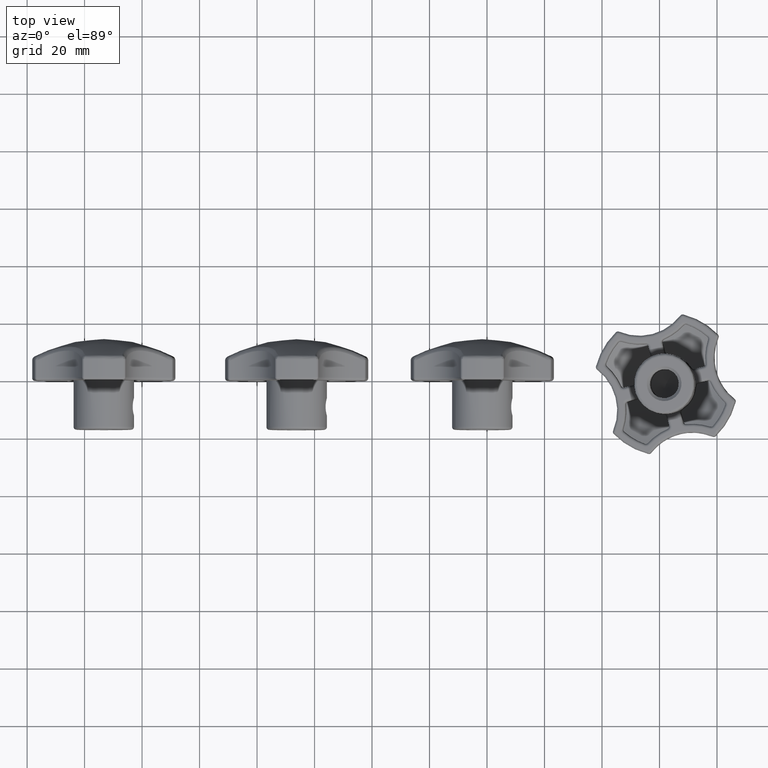
[diagram: clean part render]
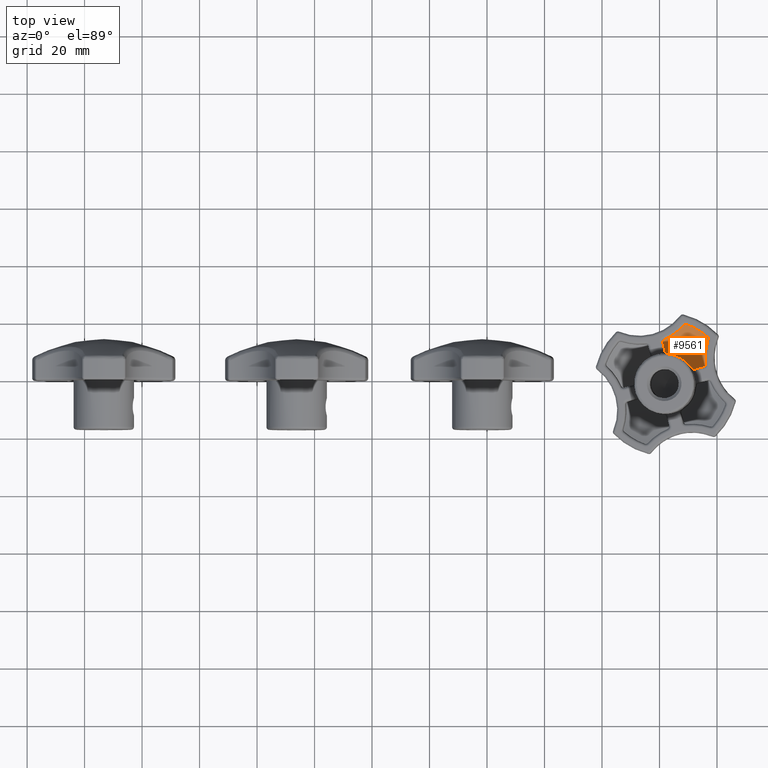
[diagram: same view with one face highlighted and labeled with its STEP entity id]
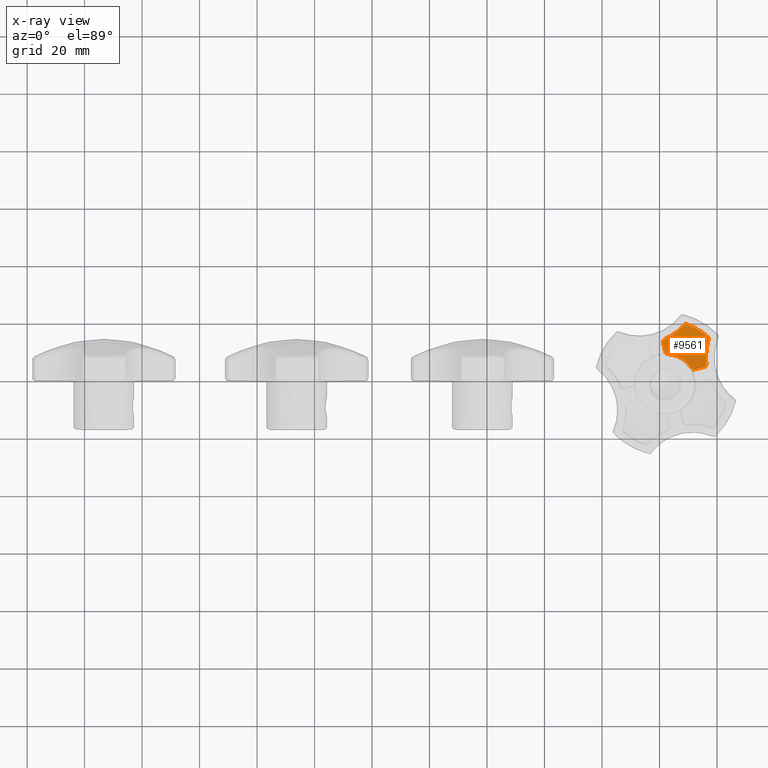
[diagram: x-ray of the same camera — body ghosted, the highlighted face saturated]
A machine part, top view. The second image highlights one B-rep face of the part: STEP entity #9561.
The next image is the same camera in x-ray: the body ghosted, the highlighted face saturated — about 0% of this face is hidden behind the body in this view.
In plain terms, the highlighted spherical surface has radius 46.9918 mm.
Its self-contained STEP definition (entity closure, byte-faithful):
#83=SPHERICAL_SURFACE('',#10839,46.9917910447761);
#983=CIRCLE('',#10699,10.5);
#1076=CIRCLE('',#10837,46.9252429465837);
#1077=CIRCLE('',#10840,46.9252429465837);
#1078=CIRCLE('',#10841,22.);
#1953=FACE_OUTER_BOUND('',#2620,.T.);
#2620=EDGE_LOOP('',(#8489,#8490,#8491,#8492,#8493,#8494,#8495,#8496,#8497,
#8498,#8499,#8500));
#2999=B_SPLINE_CURVE_WITH_KNOTS('',3,(#20651,#20652,#20653,#20654,#20655,
#20656,#20657,#20658,#20659,#20660,#20661),.UNSPECIFIED.,.F.,.F.,(4,2,3,
2,4),(0.549549829991126,0.579875052232549,0.618751588709822,0.658551552819754,
0.689460860950692),.UNSPECIFIED.);
#3000=B_SPLINE_CURVE_WITH_KNOTS('',3,(#20667,#20668,#20669,#20670,#20671,
#20672,#20673,#20674,#20675,#20676,#20677),.UNSPECIFIED.,.F.,.F.,(4,2,3,
2,4),(0.582585438771884,0.601025923742446,0.638791021911289,0.678956437213313,
0.697851038137029),.UNSPECIFIED.);
#3001=B_SPLINE_CURVE_WITH_KNOTS('',3,(#20686,#20687,#20688,#20689,#20690,
#20691,#20692,#20693,#20694,#20695,#20696),.UNSPECIFIED.,.F.,.F.,(4,2,3,
2,4),(0.579730270357903,0.598624871281619,0.638790286583643,0.676555384752485,
0.694995869723048),.UNSPECIFIED.);
#3002=B_SPLINE_CURVE_WITH_KNOTS('',3,(#20702,#20703,#20704,#20705,#20706,
#20707,#20708,#20709,#20710,#20711,#20712),.UNSPECIFIED.,.F.,.F.,(4,2,3,
2,4),(0.548042316468952,0.57895162459989,0.618751588709822,0.657628125187095,
0.687953347428518),.UNSPECIFIED.);
#3003=B_SPLINE_CURVE_WITH_KNOTS('',3,(#20777,#20778,#20779,#20780,#20781,
#20782,#20783,#20784,#20785,#20786,#20787),.UNSPECIFIED.,.F.,.F.,(4,2,3,
2,4),(0.551679395331766,0.574459541545734,0.612195489768751,0.650579885670993,
0.673602083070949),.UNSPECIFIED.);
#3004=B_SPLINE_CURVE_WITH_KNOTS('',3,(#20792,#20793,#20794,#20795,#20796,
#20797,#20798,#20799,#20800,#20801,#20802),.UNSPECIFIED.,.F.,.F.,(4,2,3,
2,4),(0.55078897323554,0.573811170635495,0.612195566537737,0.649931514760754,
0.672711660974723),.UNSPECIFIED.);
#3005=B_SPLINE_CURVE_WITH_KNOTS('',3,(#20806,#20807,#20808,#20809,#20810,
#20811,#20812,#20813),.UNSPECIFIED.,.F.,.F.,(4,2,2,4),(6.67150161002294,
6.80911498582731,7.26921044549458,7.51554097237896),.UNSPECIFIED.);
#3006=B_SPLINE_CURVE_WITH_KNOTS('',3,(#20815,#20816,#20817,#20818,#20819,
#20820,#20821,#20822),.UNSPECIFIED.,.F.,.F.,(4,2,2,4),(5.18249807994112,
5.4288286068255,5.88892406649277,6.02653744229714),.UNSPECIFIED.);
#4376=VERTEX_POINT('',#20313);
#4377=VERTEX_POINT('',#20315);
#4441=VERTEX_POINT('',#20649);
#4442=VERTEX_POINT('',#20650);
#4443=VERTEX_POINT('',#20665);
#4444=VERTEX_POINT('',#20666);
#4445=VERTEX_POINT('',#20684);
#4446=VERTEX_POINT('',#20685);
#4447=VERTEX_POINT('',#20700);
#4448=VERTEX_POINT('',#20701);
#4477=VERTEX_POINT('',#20775);
#4478=VERTEX_POINT('',#20791);
#5688=EDGE_CURVE('',#4377,#4376,#983,.T.);
#5786=EDGE_CURVE('',#4441,#4442,#2999,.T.);
#5789=EDGE_CURVE('',#4443,#4444,#3000,.T.);
#5794=EDGE_CURVE('',#4445,#4446,#3001,.T.);
#5797=EDGE_CURVE('',#4447,#4448,#3002,.T.);
#5831=EDGE_CURVE('',#4376,#4477,#3003,.T.);
#5832=EDGE_CURVE('',#4477,#4447,#1076,.T.);
#5833=EDGE_CURVE('',#4478,#4377,#3004,.T.);
#5835=EDGE_CURVE('',#4442,#4478,#1077,.T.);
#5836=EDGE_CURVE('',#4445,#4448,#3005,.F.);
#5837=EDGE_CURVE('',#4443,#4446,#1078,.F.);
#5838=EDGE_CURVE('',#4441,#4444,#3006,.F.);
#8489=ORIENTED_EDGE('',*,*,#5786,.T.);
#8490=ORIENTED_EDGE('',*,*,#5835,.T.);
#8491=ORIENTED_EDGE('',*,*,#5833,.T.);
#8492=ORIENTED_EDGE('',*,*,#5688,.T.);
#8493=ORIENTED_EDGE('',*,*,#5831,.T.);
#8494=ORIENTED_EDGE('',*,*,#5832,.T.);
#8495=ORIENTED_EDGE('',*,*,#5797,.T.);
#8496=ORIENTED_EDGE('',*,*,#5836,.F.);
#8497=ORIENTED_EDGE('',*,*,#5794,.T.);
#8498=ORIENTED_EDGE('',*,*,#5837,.F.);
#8499=ORIENTED_EDGE('',*,*,#5789,.T.);
#8500=ORIENTED_EDGE('',*,*,#5838,.F.);
#9561=ADVANCED_FACE('',(#1953),#83,.F.);
#10699=AXIS2_PLACEMENT_3D('',#20316,#13333,#13334);
#10837=AXIS2_PLACEMENT_3D('',#20789,#13643,#13644);
#10839=AXIS2_PLACEMENT_3D('',#20804,#13648,#13649);
#10840=AXIS2_PLACEMENT_3D('',#20805,#13650,#13651);
#10841=AXIS2_PLACEMENT_3D('',#20814,#13652,#13653);
#13333=DIRECTION('center_axis',(0.,1.,0.));
#13334=DIRECTION('ref_axis',(-1.,2.11471052309554E-16,-2.94936186321761E-16));
#13643=DIRECTION('center_axis',(-0.707106781186547,0.,-0.707106781186548));
#13644=DIRECTION('ref_axis',(0.,1.,0.));
#13648=DIRECTION('center_axis',(6.12323399573677E-17,0.,1.));
#13649=DIRECTION('ref_axis',(1.,0.,0.));
#13650=DIRECTION('center_axis',(-0.707106781186548,0.,0.707106781186547));
#13651=DIRECTION('ref_axis',(0.,-1.,0.));
#13652=DIRECTION('center_axis',(0.,-1.,0.));
#13653=DIRECTION('ref_axis',(-1.,0.,0.));
#20313=CARTESIAN_POINT('',(9.33207169382273,10.5119034087928,-4.81273704884783));
#20315=CARTESIAN_POINT('',(9.33207169382273,10.5119034087928,4.81273704884785));
#20316=CARTESIAN_POINT('Origin',(0.,10.5119034087928,0.));
#20649=CARTESIAN_POINT('',(13.1581020679726,9.02492701250995,8.43334312095329));
#20650=CARTESIAN_POINT('',(11.8653885222744,9.40781189397483,8.32985461634168));
#20651=CARTESIAN_POINT('Ctrl Pts',(13.1581020679726,9.02492701250997,8.43334312095329));
#20652=CARTESIAN_POINT('Ctrl Pts',(13.074885100079,9.03819448170011,8.49346241867736));
#20653=CARTESIAN_POINT('Ctrl Pts',(12.9796059495577,9.05684990175008,8.54211919151407));
#20654=CARTESIAN_POINT('Ctrl Pts',(12.7520350045077,9.10870266841863,8.61563030293526));
#20655=CARTESIAN_POINT('Ctrl Pts',(12.6165759739593,9.14467340663315,8.62947602786543));
#20656=CARTESIAN_POINT('Ctrl Pts',(12.4926953588514,9.18139408391887,8.61955873439345));
#20657=CARTESIAN_POINT('Ctrl Pts',(12.3658722289644,9.21898698108753,8.60940587716854));
#20658=CARTESIAN_POINT('Ctrl Pts',(12.2334893061998,9.26259011390584,8.57305295630665));
#20659=CARTESIAN_POINT('Ctrl Pts',(12.0216045392693,9.34099368724918,8.46380593683761));
#20660=CARTESIAN_POINT('Ctrl Pts',(11.9366655596637,9.3756089882298,8.40113165373094));
#20661=CARTESIAN_POINT('Ctrl Pts',(11.8653885222744,9.40781189397482,8.32985461634167));
#20665=CARTESIAN_POINT('',(21.5982993975147,6.23203856661572,4.18490897575033));
#20666=CARTESIAN_POINT('',(20.8365260433964,6.53361737202533,4.97019303513557));
#20667=CARTESIAN_POINT('Ctrl Pts',(21.5982993975147,6.23203856661572,4.18490897575033));
#20668=CARTESIAN_POINT('Ctrl Pts',(21.5861056074648,6.23203856661572,4.24784108008377));
#20669=CARTESIAN_POINT('Ctrl Pts',(21.5676267360533,6.23520123854353,4.31033890825063));
#20670=CARTESIAN_POINT('Ctrl Pts',(21.4937435716521,6.25433555561599,4.49270764702951));
#20671=CARTESIAN_POINT('Ctrl Pts',(21.4188173706508,6.28083118130086,4.6038696747948));
#20672=CARTESIAN_POINT('Ctrl Pts',(21.3343283526805,6.31433464150758,4.6909662877788));
#20673=CARTESIAN_POINT('Ctrl Pts',(21.2444692854522,6.34996755280683,4.78359868651537));
#20674=CARTESIAN_POINT('Ctrl Pts',(21.1321734268189,6.39807778345344,4.86156941253217));
#20675=CARTESIAN_POINT('Ctrl Pts',(20.9542284262148,6.47864732163774,4.93798727077352));
#20676=CARTESIAN_POINT('Ctrl Pts',(20.8954076023773,6.50586159395926,4.95691580763733));
#20677=CARTESIAN_POINT('Ctrl Pts',(20.8365260433964,6.53361737202542,4.97019303513556));
#20684=CARTESIAN_POINT('',(20.8365260433964,6.53361737202533,-4.97019303513556));
#20685=CARTESIAN_POINT('',(21.5982993975147,6.23203856661572,-4.18490897575032));
#20686=CARTESIAN_POINT('Ctrl Pts',(20.8365260433964,6.53361737202542,-4.97019303513555));
#20687=CARTESIAN_POINT('Ctrl Pts',(20.8954076023773,6.50586159395926,-4.95691580763731));
#20688=CARTESIAN_POINT('Ctrl Pts',(20.9542284262148,6.47864732163774,-4.93798727077351));
#20689=CARTESIAN_POINT('Ctrl Pts',(21.1321734268189,6.39807778345344,-4.86156941253216));
#20690=CARTESIAN_POINT('Ctrl Pts',(21.2444692854522,6.34996755280683,-4.78359868651536));
#20691=CARTESIAN_POINT('Ctrl Pts',(21.3343283526805,6.31433464150758,-4.69096628777879));
#20692=CARTESIAN_POINT('Ctrl Pts',(21.4188173706508,6.28083118130086,-4.60386967479479));
#20693=CARTESIAN_POINT('Ctrl Pts',(21.4937435716521,6.25433555561598,-4.4927076470295));
#20694=CARTESIAN_POINT('Ctrl Pts',(21.5676267360533,6.23520123854352,-4.31033890825062));
#20695=CARTESIAN_POINT('Ctrl Pts',(21.5861056074648,6.23203856661572,-4.24784108008376));
#20696=CARTESIAN_POINT('Ctrl Pts',(21.5982993975147,6.23203856661572,-4.18490897575032));
#20700=CARTESIAN_POINT('',(11.8653885222744,9.40781189397483,-8.32985461634166));
#20701=CARTESIAN_POINT('',(13.1581020679726,9.02492701250995,-8.43334312095327));
#20702=CARTESIAN_POINT('Ctrl Pts',(11.8653885222744,9.40781189397482,-8.32985461634166));
#20703=CARTESIAN_POINT('Ctrl Pts',(11.9366655596637,9.3756089882298,-8.40113165373092));
#20704=CARTESIAN_POINT('Ctrl Pts',(12.0216045392694,9.34099368724918,-8.4638059368376));
#20705=CARTESIAN_POINT('Ctrl Pts',(12.2334893061998,9.26259011390584,-8.57305295630664));
#20706=CARTESIAN_POINT('Ctrl Pts',(12.3658722289644,9.21898698108753,-8.60940587716853));
#20707=CARTESIAN_POINT('Ctrl Pts',(12.4926953588514,9.18139408391887,-8.61955873439343));
#20708=CARTESIAN_POINT('Ctrl Pts',(12.6165759739593,9.14467340663315,-8.62947602786542));
#20709=CARTESIAN_POINT('Ctrl Pts',(12.7520350045077,9.10870266841862,-8.61563030293524));
#20710=CARTESIAN_POINT('Ctrl Pts',(12.9796059495578,9.05684990175007,-8.54211919151405));
#20711=CARTESIAN_POINT('Ctrl Pts',(13.074885100079,9.0381944817001,-8.49346241867735));
#20712=CARTESIAN_POINT('Ctrl Pts',(13.1581020679726,9.02492701250996,-8.43334312095327));
#20775=CARTESIAN_POINT('',(9.51373364538121,10.3369107293912,-5.97819973944846));
#20777=CARTESIAN_POINT('Ctrl Pts',(9.33207169382273,10.5119034087928,-4.81273704884783));
#20778=CARTESIAN_POINT('Ctrl Pts',(9.2958792157285,10.5119034087928,-4.88291557655969));
#20779=CARTESIAN_POINT('Ctrl Pts',(9.26741787783101,10.5095065350007,-4.9589326561753));
#20780=CARTESIAN_POINT('Ctrl Pts',(9.21745482010281,10.4967669792304,-5.16649711063173));
#20781=CARTESIAN_POINT('Ctrl Pts',(9.21360818689155,10.482008783338,-5.30216194699637));
#20782=CARTESIAN_POINT('Ctrl Pts',(9.23277135773345,10.4635649391621,-5.42510437086792));
#20783=CARTESIAN_POINT('Ctrl Pts',(9.25226382502195,10.4448041593183,-5.5501594150178));
#20784=CARTESIAN_POINT('Ctrl Pts',(9.29806363811888,10.4197501742752,-5.67872677525318));
#20785=CARTESIAN_POINT('Ctrl Pts',(9.40892292086277,10.3739978295767,-5.86028811160111));
#20786=CARTESIAN_POINT('Ctrl Pts',(9.45870562829921,10.3555939340801,-5.92317172236645));
#20787=CARTESIAN_POINT('Ctrl Pts',(9.51373364538121,10.3369107293912,-5.97819973944846));
#20789=CARTESIAN_POINT('Origin',(1.76776695296637,-35.2917910447761,1.76776695296637));
#20791=CARTESIAN_POINT('',(9.5137336453812,10.3369107293912,5.97819973944847));
#20792=CARTESIAN_POINT('Ctrl Pts',(9.5137336453812,10.3369107293912,5.97819973944847));
#20793=CARTESIAN_POINT('Ctrl Pts',(9.4587056282992,10.3555939340801,5.92317172236647));
#20794=CARTESIAN_POINT('Ctrl Pts',(9.40892292086276,10.3739978295767,5.86028811160112));
#20795=CARTESIAN_POINT('Ctrl Pts',(9.29806363811887,10.4197501742752,5.6787267752532));
#20796=CARTESIAN_POINT('Ctrl Pts',(9.25226382502194,10.4448041593183,5.55015941501781));
#20797=CARTESIAN_POINT('Ctrl Pts',(9.23277135773344,10.4635649391621,5.42510437086794));
#20798=CARTESIAN_POINT('Ctrl Pts',(9.21360818689154,10.482008783338,5.30216194699639));
#20799=CARTESIAN_POINT('Ctrl Pts',(9.21745482010281,10.4967669792304,5.16649711063174));
#20800=CARTESIAN_POINT('Ctrl Pts',(9.267417877831,10.5095065350007,4.95893265617531));
#20801=CARTESIAN_POINT('Ctrl Pts',(9.2958792157285,10.5119034087928,4.8829155765597));
#20802=CARTESIAN_POINT('Ctrl Pts',(9.33207169382273,10.5119034087928,4.81273704884785));
#20804=CARTESIAN_POINT('Origin',(0.,-35.2917910447761,0.));
#20805=CARTESIAN_POINT('Origin',(1.76776695296637,-35.2917910447761,-1.76776695296637));
#20806=CARTESIAN_POINT('Ctrl Pts',(13.1581020679726,9.02492701250996,-8.43334312095327));
#20807=CARTESIAN_POINT('Ctrl Pts',(13.5537624224523,8.96184598834273,-8.14750210498417));
#20808=CARTESIAN_POINT('Ctrl Pts',(13.9606276326671,8.88472048914707,-7.87468129791615));
#20809=CARTESIAN_POINT('Ctrl Pts',(15.7578272492272,8.49164948558887,-6.75822675360177));
#20810=CARTESIAN_POINT('Ctrl Pts',(17.2238585384876,8.03159986709822,-6.08300990968191));
#20811=CARTESIAN_POINT('Ctrl Pts',(19.3124411680082,7.21944541389401,-5.35975974996346));
#20812=CARTESIAN_POINT('Ctrl Pts',(20.0691743998092,6.89533405016276,-5.14322347997051));
#20813=CARTESIAN_POINT('Ctrl Pts',(20.8365260433964,6.53361737202542,-4.97019303513555));
#20814=CARTESIAN_POINT('Origin',(0.,6.23203856661572,0.));
#20815=CARTESIAN_POINT('Ctrl Pts',(20.8365260433964,6.53361737202543,4.97019303513556));
#20816=CARTESIAN_POINT('Ctrl Pts',(20.0691743998092,6.89533405016276,5.14322347997052));
#20817=CARTESIAN_POINT('Ctrl Pts',(19.3124411680082,7.21944541389401,5.35975974996347));
#20818=CARTESIAN_POINT('Ctrl Pts',(17.2238585384876,8.03159986709822,6.08300990968191));
#20819=CARTESIAN_POINT('Ctrl Pts',(15.7578272492272,8.49164948558886,6.75822675360178));
#20820=CARTESIAN_POINT('Ctrl Pts',(13.9606276326671,8.88472048914707,7.87468129791616));
#20821=CARTESIAN_POINT('Ctrl Pts',(13.5537624224523,8.96184598834273,8.14750210498418));
#20822=CARTESIAN_POINT('Ctrl Pts',(13.1581020679726,9.02492701250996,8.43334312095329));